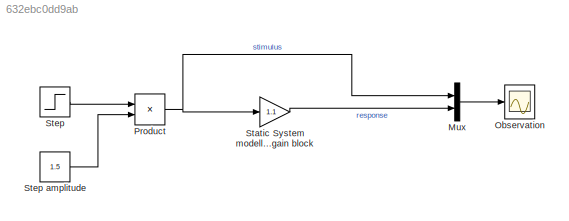
MODEL slx_632ebc0dd9ab
KIND model
BLOCK [Mux] Mux
  DisplayOption = bar
  Inputs = 2
  Ports = [2, 1]
BLOCK [Scope] Observation
  Floating = off
  LegendLocations = 0.56918      0.6778      0.3125     0.14089
  LimitDataPoints = off
  NumInputPorts = 1
  Ports = [1]
  ShowLegends = on
  TimeRange = 1
  YMax = 1
  YMin = 0
BLOCK [Product] Product
  InputSameDT = off
  OutDataTypeStr = Inherit: Inherit via internal rule
  Ports = [2, 1]
  RndMeth = Floor
  SaturateOnIntegerOverflow = off
BLOCK [Gain] Static System modelled by gain block
  Gain = 1.1
  OutDataTypeStr = Inherit: Inherit via internal rule
  ParamDataTypeStr = Inherit: Inherit via internal rule
  SaturateOnIntegerOverflow = off
BLOCK [Step] Step
  SampleTime = 0
  Time = 0.1
BLOCK [Constant] Step amplitude
  Value = 1.5
LINE Mux:1 -> Observation:1
NET Product:1 -> Mux:1, Static System modelled by gain block:1
LINE Static System modelled by gain block:1 -> Mux:2
LINE Step amplitude:1 -> Product:2
LINE Step:1 -> Product:1
note: NET lines group one-source signal fan-out (src -> all destinations, sorted); 1:1 wires keep LINE
